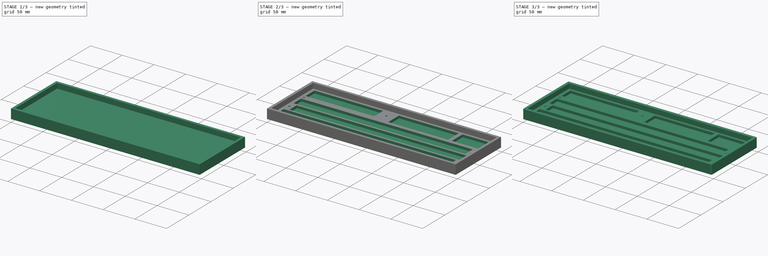
[diagram: build sequence overview — one tinted view per stage of 3, left to right]
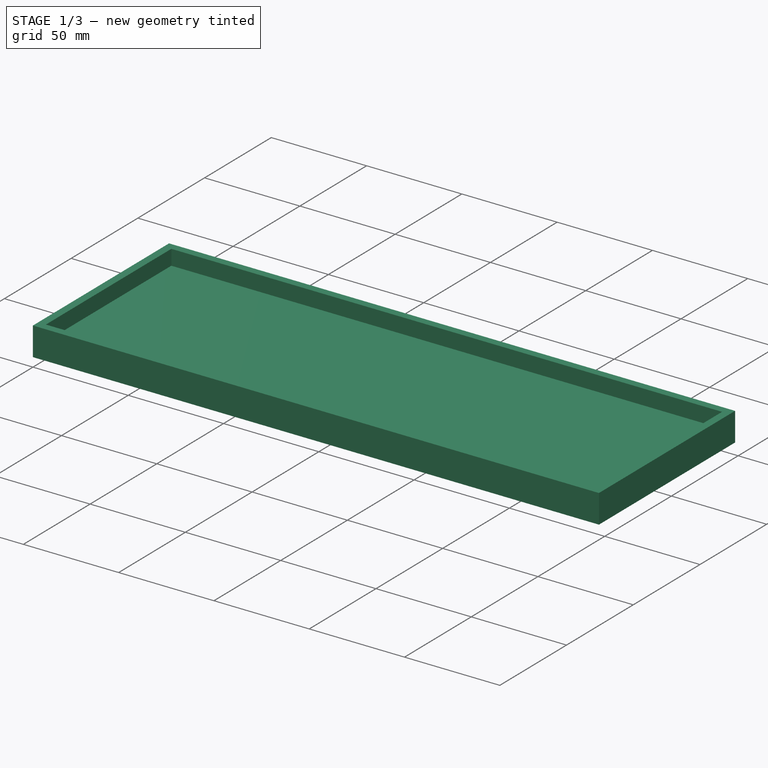
[diagram: stage 1 of 3 — iso view after this stage's code; geometry added in this stage tinted green]
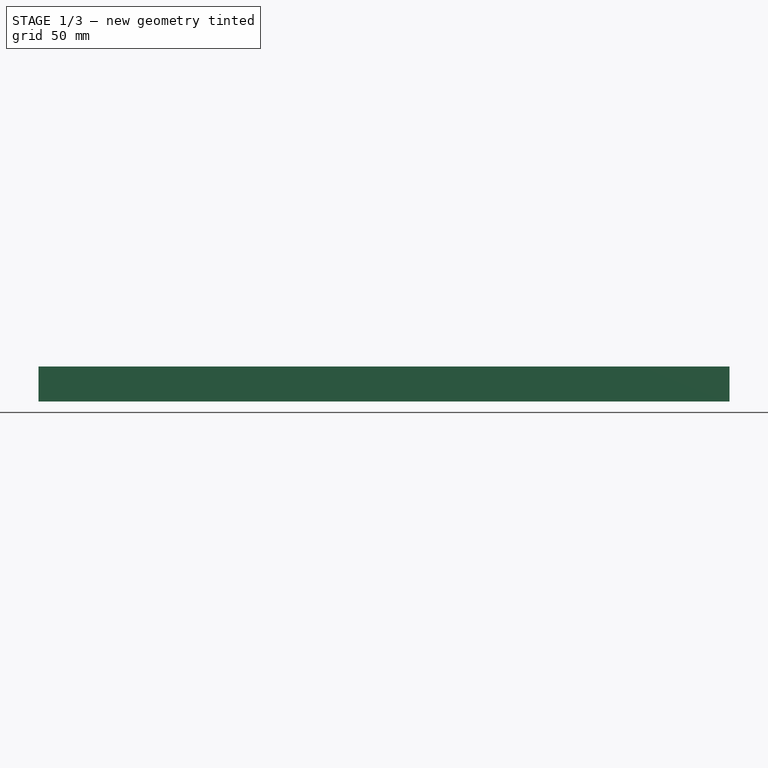
[diagram: stage 1 of 3 — front view after this stage's code; geometry added in this stage tinted green]
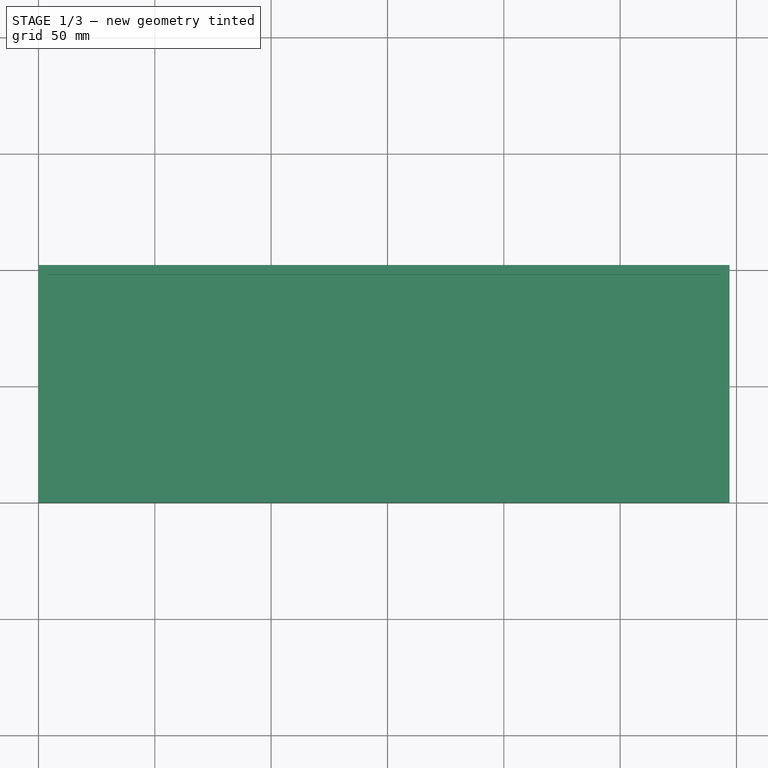
[diagram: stage 1 of 3 — top view after this stage's code; geometry added in this stage tinted green]
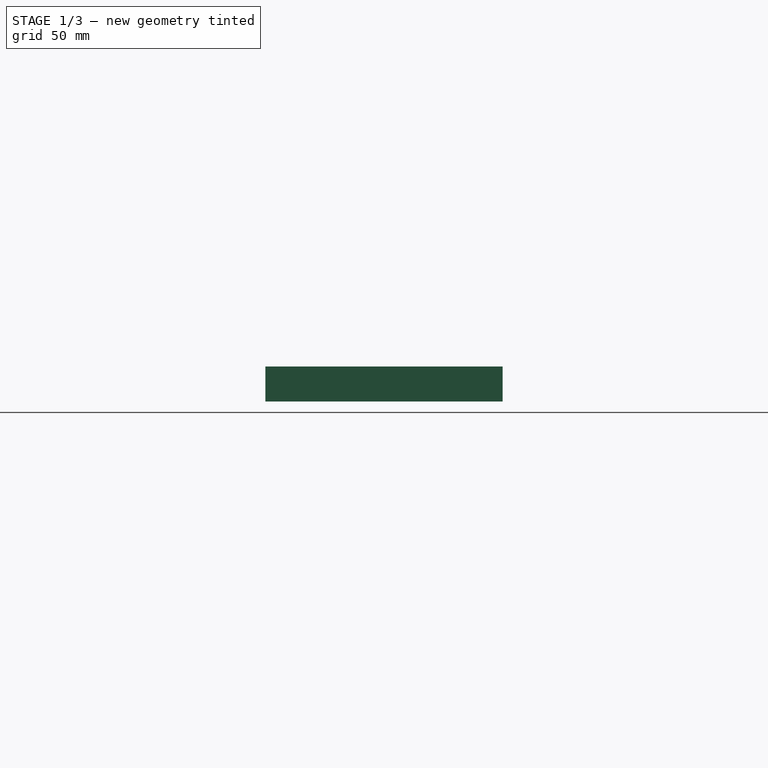
[diagram: stage 1 of 3 — right view after this stage's code; geometry added in this stage tinted green]
FCSTD DOCUMENT  (FreeCAD 0.15R4671 (Git))
Label: midi314
License: All rights reserved
LicenseURL: http://fr.wikipedia.org/wiki/<copyright redacted>
objects: Sketcher::SketchObject×5, PartDesign::Pocket×4, PartDesign::Fillet×2, PartDesign::Pad×1
note: 17 computed .brp shape members not serialized (recipe doc carries the construction recipe); baked Part::Feature solids carry a one-line shape summary decoded from their .brp

FEATURE [Sketcher::SketchObject] Sketch
  sketch-geometry (4):
    g0: LineSegment StartX=0 StartY=0 StartZ=0 EndX=297 EndY=0 EndZ=0
    g1: LineSegment StartX=297 StartY=0 StartZ=0 EndX=297 EndY=102 EndZ=0
    g2: LineSegment StartX=297 StartY=102 StartZ=0 EndX=0 EndY=102 EndZ=0
    g3: LineSegment StartX=0 StartY=102 StartZ=0 EndX=0 EndY=0 EndZ=0
  constraints (8):
    c: Coincident(g0,g1)
    c: Coincident(g1,g2)
    c: Coincident(g2,g3)
    c: Coincident(g3,g0)
    c: Horizontal(g0)
    c: Horizontal(g2)
    c: Vertical(g1)
    c: Vertical(g3)
FEATURE [PartDesign::Pad] Pad
  Length = 15
  Length2 = 100
  Sketch = -> Sketch
  Type = 0
FEATURE [Sketcher::SketchObject] Sketch001
  Placement = pos=(0,0,15) rot=(0,0,1;0rad)
  Support = -> Pad [Face6]
  sketch-geometry (4):
    g0: LineSegment StartX=4 StartY=98 StartZ=0 EndX=293 EndY=98 EndZ=0
    g1: LineSegment StartX=293 StartY=98 StartZ=0 EndX=293 EndY=4 EndZ=0
    g2: LineSegment StartX=293 StartY=4 StartZ=0 EndX=4 EndY=4 EndZ=0
    g3: LineSegment StartX=4 StartY=4 StartZ=0 EndX=4 EndY=98 EndZ=0
  constraints (8):
    c: Coincident(g0,g1)
    c: Coincident(g1,g2)
    c: Coincident(g2,g3)
    c: Coincident(g3,g0)
    c: Horizontal(g0)
    c: Horizontal(g2)
    c: Vertical(g1)
    c: Vertical(g3)
FEATURE [PartDesign::Pocket] Pocket
  Length = 8
  Sketch = -> Sketch001
  Type = 0
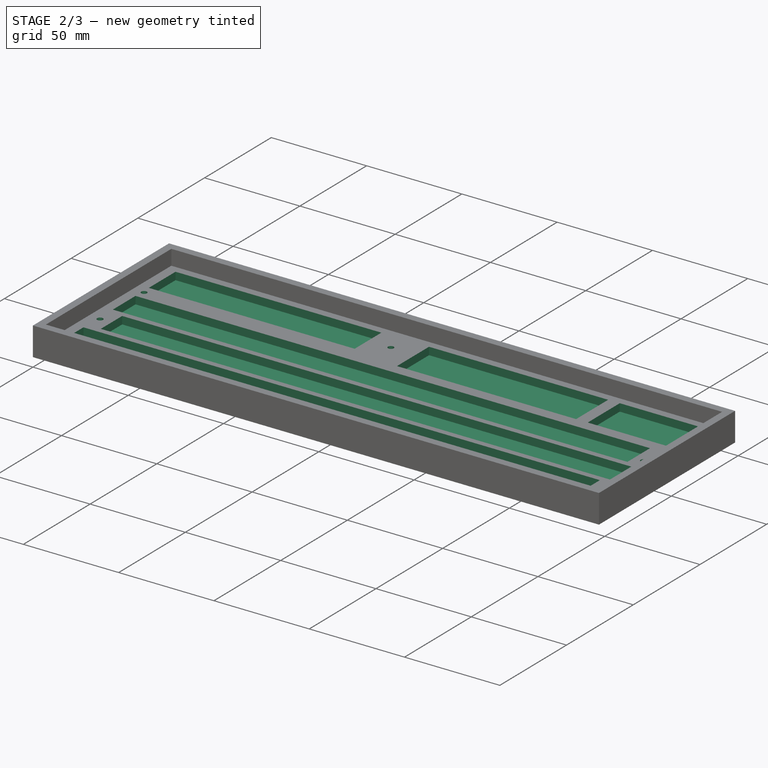
[diagram: stage 2 of 3 — iso view after this stage's code; geometry added in this stage tinted green]
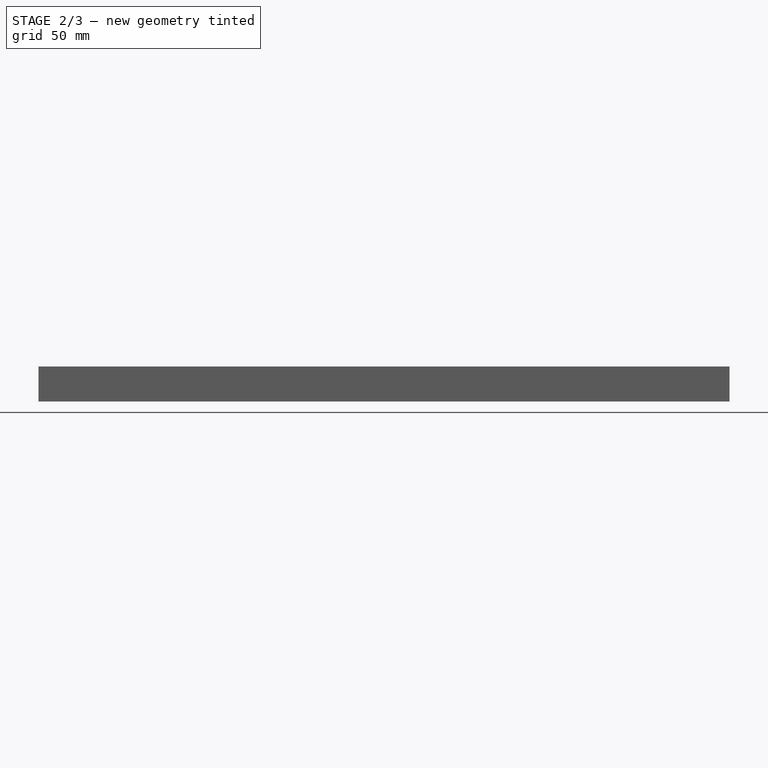
[diagram: stage 2 of 3 — front view after this stage's code; geometry added in this stage tinted green]
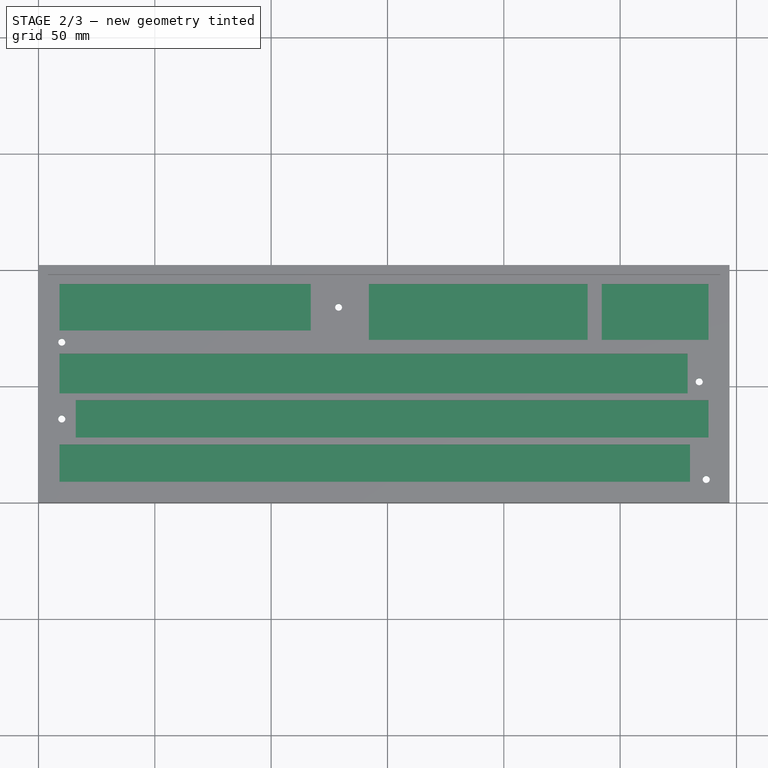
[diagram: stage 2 of 3 — top view after this stage's code; geometry added in this stage tinted green]
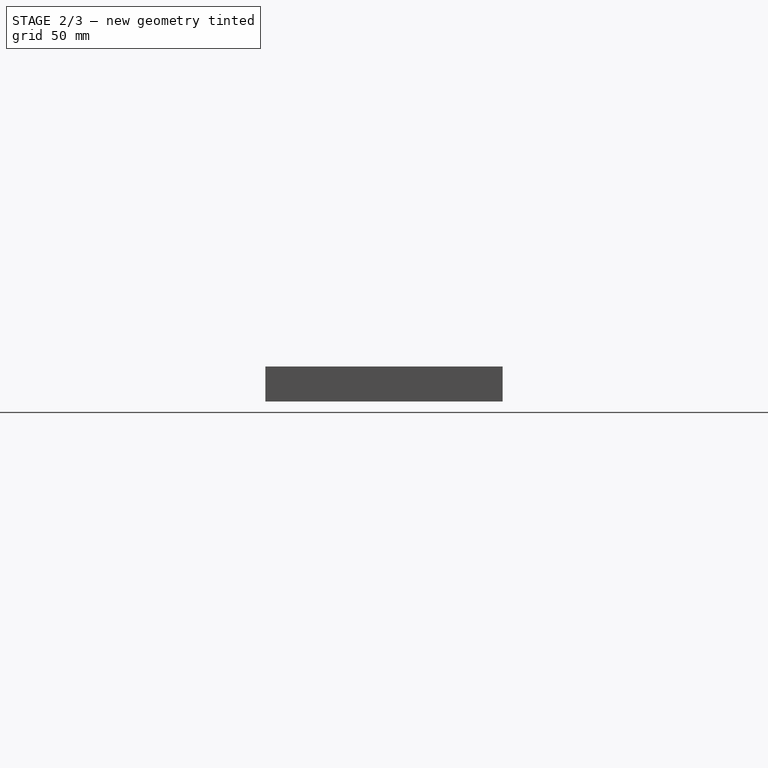
[diagram: stage 2 of 3 — right view after this stage's code; geometry added in this stage tinted green]
FEATURE [Sketcher::SketchObject] Sketch002
  Placement = pos=(0,0,7) rot=(0,0,1;0rad)
  Support = -> Pocket [Face11]
  sketch-geometry (24):
    g0: LineSegment StartX=9 StartY=9 StartZ=0 EndX=280 EndY=9 EndZ=0
    g1: LineSegment StartX=280 StartY=9 StartZ=0 EndX=280 EndY=25 EndZ=0
    g2: LineSegment StartX=280 StartY=25 StartZ=0 EndX=9 EndY=25 EndZ=0
    g3: LineSegment StartX=9 StartY=25 StartZ=0 EndX=9 EndY=9 EndZ=0
    g4: LineSegment StartX=16 StartY=28 StartZ=0 EndX=288 EndY=28 EndZ=0
    g5: LineSegment StartX=288 StartY=28 StartZ=0 EndX=288 EndY=44 EndZ=0
    g6: LineSegment StartX=288 StartY=44 StartZ=0 EndX=16 EndY=44 EndZ=0
    g7: LineSegment StartX=16 StartY=44 StartZ=0 EndX=16 EndY=28 EndZ=0
    g8: LineSegment StartX=9 StartY=47 StartZ=0 EndX=279 EndY=47 EndZ=0
    g9: LineSegment StartX=279 StartY=47 StartZ=0 EndX=279 EndY=64 EndZ=0
    g10: LineSegment StartX=279 StartY=64 StartZ=0 EndX=9 EndY=64 EndZ=0
    g11: LineSegment StartX=9 StartY=64 StartZ=0 EndX=9 EndY=47 EndZ=0
    g12: LineSegment StartX=288 StartY=70 StartZ=0 EndX=242.098 EndY=70 EndZ=0
    g13: LineSegment StartX=242.098 StartY=70 StartZ=0 EndX=242.098 EndY=94 EndZ=0
    g14: LineSegment StartX=242.098 StartY=94 StartZ=0 EndX=288 EndY=94 EndZ=0
    g15: LineSegment StartX=288 StartY=94 StartZ=0 EndX=288 EndY=70 EndZ=0
    g16: LineSegment StartX=142 StartY=94 StartZ=0 EndX=236 EndY=94 EndZ=0
    g17: LineSegment StartX=236 StartY=94 StartZ=0 EndX=236 EndY=70 EndZ=0
    g18: LineSegment StartX=236 StartY=70 StartZ=0 EndX=142 EndY=70 EndZ=0
    g19: LineSegment StartX=142 StartY=70 StartZ=0 EndX=142 EndY=94 EndZ=0
    g20: LineSegment StartX=9 StartY=94 StartZ=0 EndX=117 EndY=94 EndZ=0
    g21: LineSegment StartX=117 StartY=94 StartZ=0 EndX=117 EndY=74 EndZ=0
    g22: LineSegment StartX=117 StartY=74 StartZ=0 EndX=9 EndY=74 EndZ=0
    g23: LineSegment StartX=9 StartY=74 StartZ=0 EndX=9 EndY=94 EndZ=0
  constraints (48):
    c: Coincident(g0,g1)
    c: Coincident(g1,g2)
    c: Coincident(g2,g3)
    c: Coincident(g3,g0)
    c: Horizontal(g0)
    c: Horizontal(g2)
    c: Vertical(g1)
    c: Vertical(g3)
    c: Coincident(g4,g5)
    c: Coincident(g5,g6)
    c: Coincident(g6,g7)
    c: Coincident(g7,g4)
    c: Horizontal(g4)
    c: Horizontal(g6)
    c: Vertical(g5)
    c: Vertical(g7)
    c: Coincident(g8,g9)
    c: Coincident(g9,g10)
    c: Coincident(g10,g11)
    c: Coincident(g11,g8)
    c: Horizontal(g8)
    c: Horizontal(g10)
    c: Vertical(g9)
    c: Vertical(g11)
    c: Coincident(g12,g13)
    c: Coincident(g13,g14)
    c: Coincident(g14,g15)
    c: Coincident(g15,g12)
    c: Horizontal(g12)
    c: Horizontal(g14)
    c: Vertical(g13)
    c: Vertical(g15)
    c: Coincident(g16,g17)
    c: Coincident(g17,g18)
    c: Coincident(g18,g19)
    c: Coincident(g19,g16)
    c: Horizontal(g16)
    c: Horizontal(g18)
    c: Vertical(g17)
    c: Vertical(g19)
    c: Coincident(g20,g21)
    c: Coincident(g21,g22)
    c: Coincident(g22,g23)
    c: Coincident(g23,g20)
    c: Horizontal(g20)
    c: Horizontal(g22)
    c: Vertical(g21)
    c: Vertical(g23)
FEATURE [PartDesign::Pocket] Pocket001
  Length = 4
  Sketch = -> Sketch002
  Type = 0
FEATURE [Sketcher::SketchObject] Sketch003
  Placement = pos=(0,0,7) rot=(0,0,1;0rad)
  Support = -> Pocket001 [Face11]
  sketch-geometry (5):
    g0: Circle CenterX=284 CenterY=52 CenterZ=0 NormalX=0 NormalY=0 NormalZ=1 Radius=1.51818
    g1: Circle CenterX=10 CenterY=36 CenterZ=0 NormalX=0 NormalY=0 NormalZ=1 Radius=1.52366
    g2: Circle CenterX=287 CenterY=10 CenterZ=0 NormalX=0 NormalY=0 NormalZ=1 Radius=1.52277
    g3: Circle CenterX=10 CenterY=69 CenterZ=0 NormalX=0 NormalY=0 NormalZ=1 Radius=1.49253
    g4: Circle CenterX=129 CenterY=84 CenterZ=0 NormalX=0 NormalY=0 NormalZ=1 Radius=1.48537
FEATURE [PartDesign::Pocket] Pocket002
  Length = 15
  Sketch = -> Sketch003
  Type = 0
FEATURE [Sketcher::SketchObject] Sketch004
  Placement = pos=(0,0,0) rot=(1,0,0;3.14159rad)
  Support = -> Pocket002 [Face4]
  sketch-geometry (5):
    g0: Circle CenterX=10 CenterY=-36 CenterZ=0 NormalX=0 NormalY=0 NormalZ=1 Radius=3.47664
    g1: Circle CenterX=10 CenterY=-69 CenterZ=0 NormalX=0 NormalY=0 NormalZ=1 Radius=3.50458
    g2: Circle CenterX=129 CenterY=-84 CenterZ=0 NormalX=0 NormalY=0 NormalZ=1 Radius=3.49692
    g3: Circle CenterX=287 CenterY=-10 CenterZ=0 NormalX=0 NormalY=0 NormalZ=1 Radius=3.4664
    g4: Circle CenterX=284 CenterY=-52 CenterZ=0 NormalX=0 NormalY=0 NormalZ=1 Radius=3.48181
FEATURE [PartDesign::Pocket] Pocket003
  Length = 3
  Sketch = -> Sketch004
  Type = 0
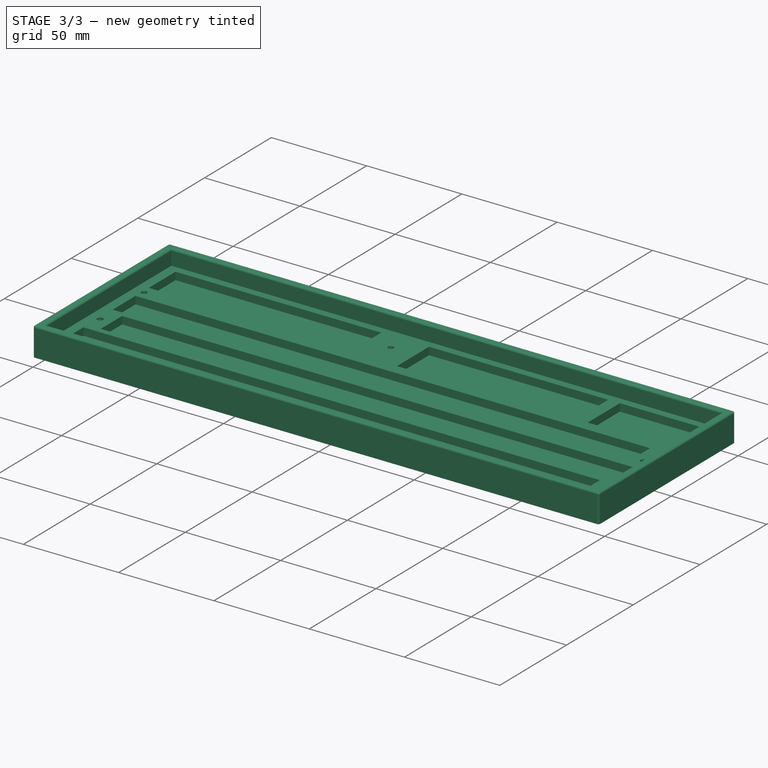
[diagram: stage 3 of 3 — iso view after this stage's code; geometry added in this stage tinted green]
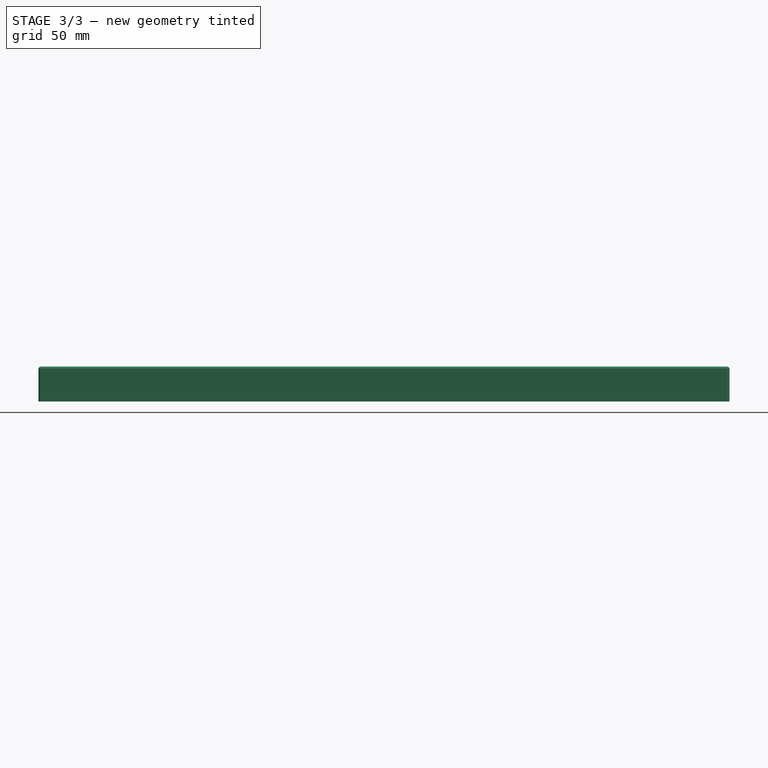
[diagram: stage 3 of 3 — front view after this stage's code; geometry added in this stage tinted green]
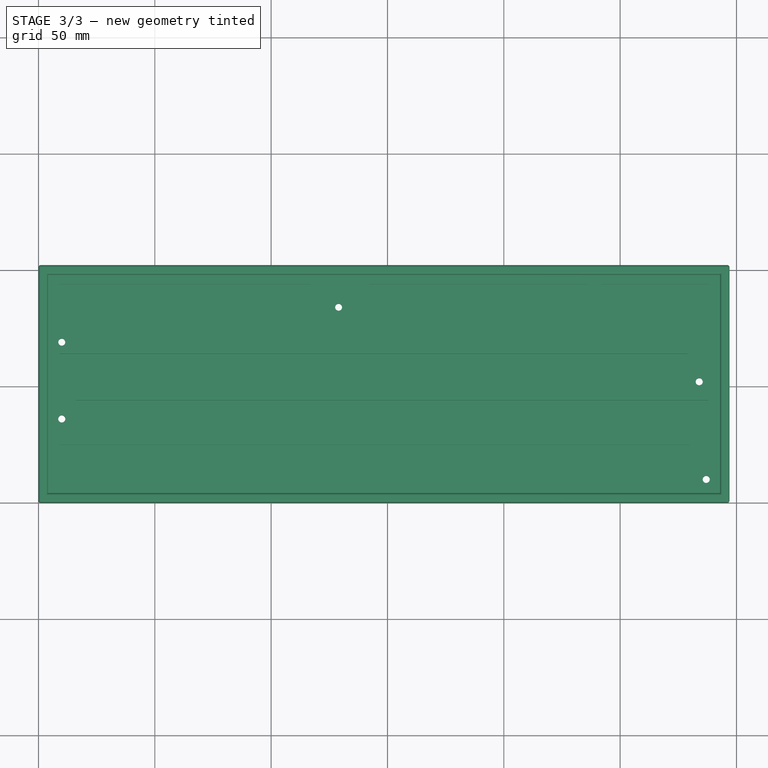
[diagram: stage 3 of 3 — top view after this stage's code; geometry added in this stage tinted green]
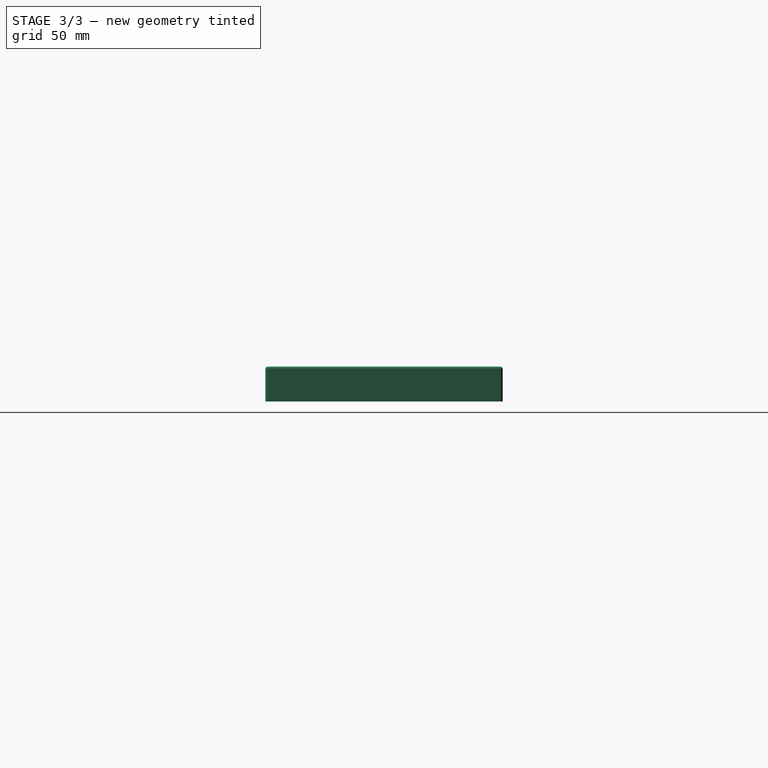
[diagram: stage 3 of 3 — right view after this stage's code; geometry added in this stage tinted green]
FEATURE [PartDesign::Fillet] Fillet
  Base = -> Pocket003 [Edge17,Edge8,Edge5,Edge4,Edge2,Edge1,Edge7,Edge10]
  Radius = 1
FEATURE [PartDesign::Fillet] Fillet001
  Base = -> Fillet [Edge50,Edge53,Edge52,Edge51]
  Radius = 1
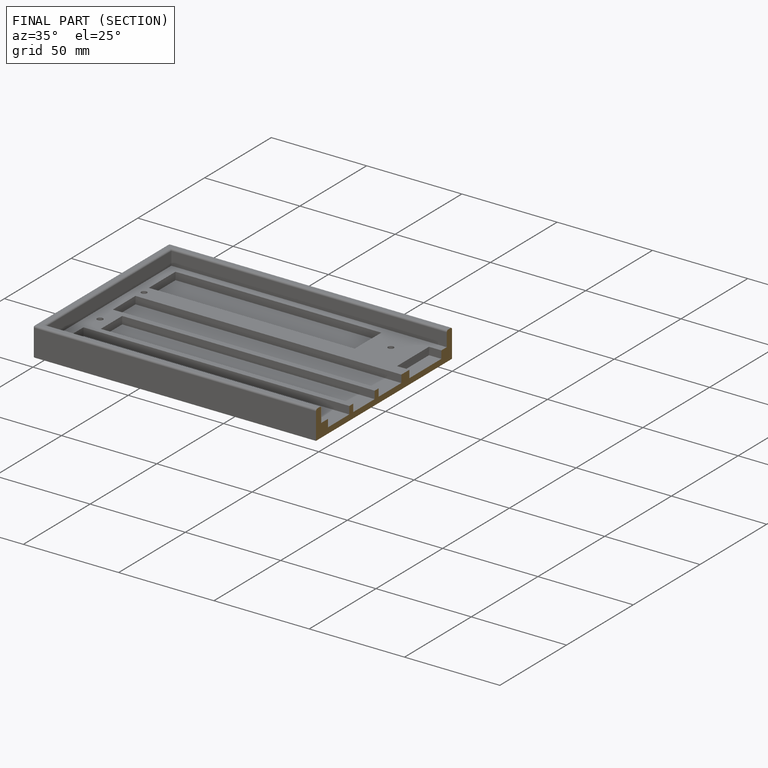
[diagram: finished part — half-section view (interior)]
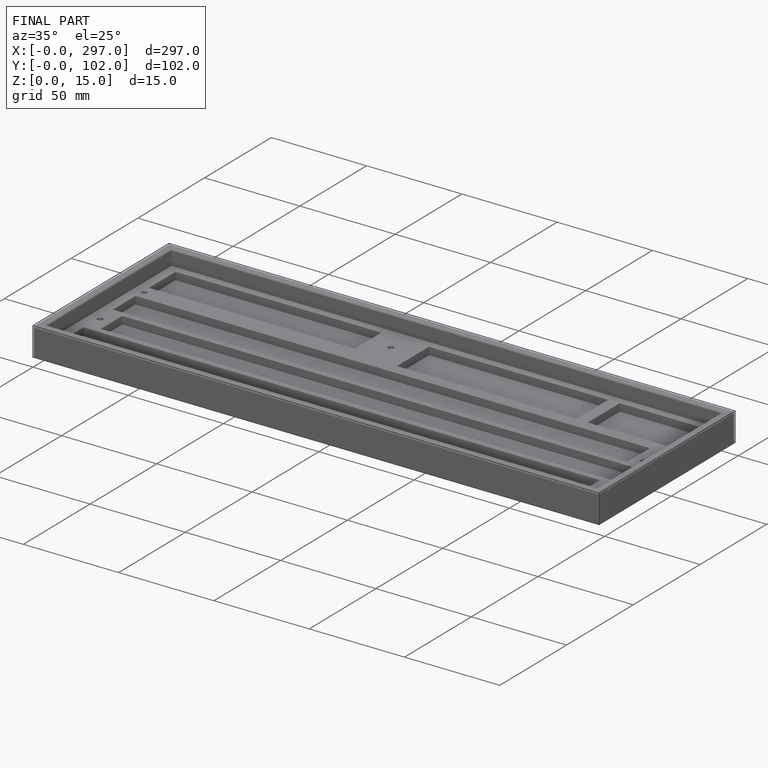
[diagram: finished part — iso view with bounding-box wireframe]
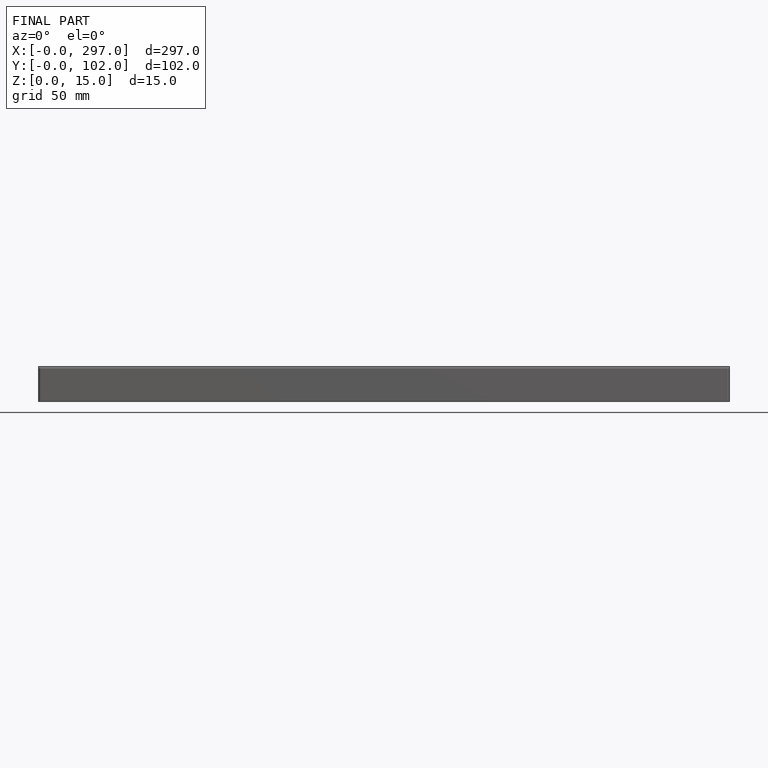
[diagram: finished part — front view with bounding-box wireframe]
